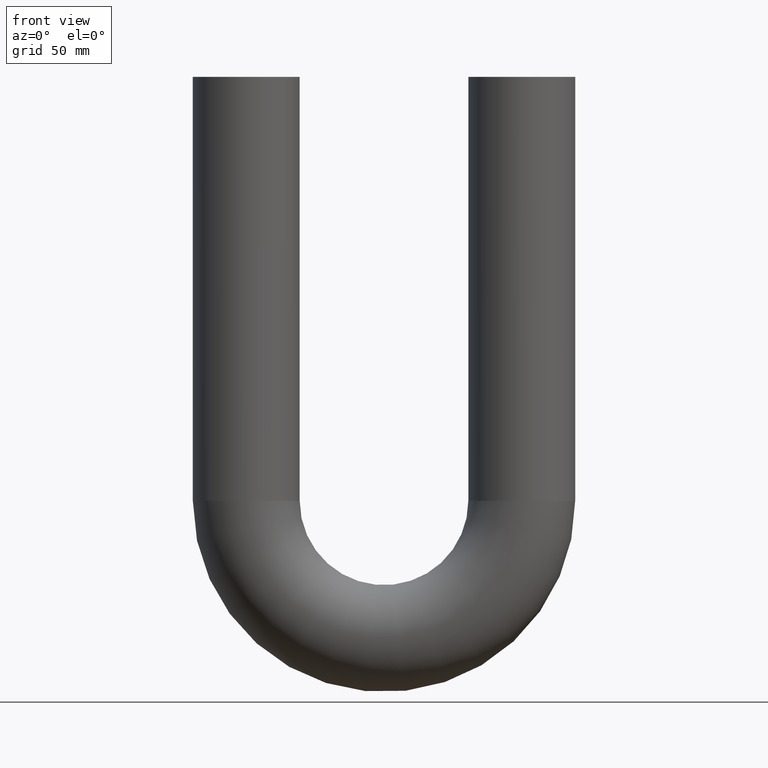
[diagram: clean part render]
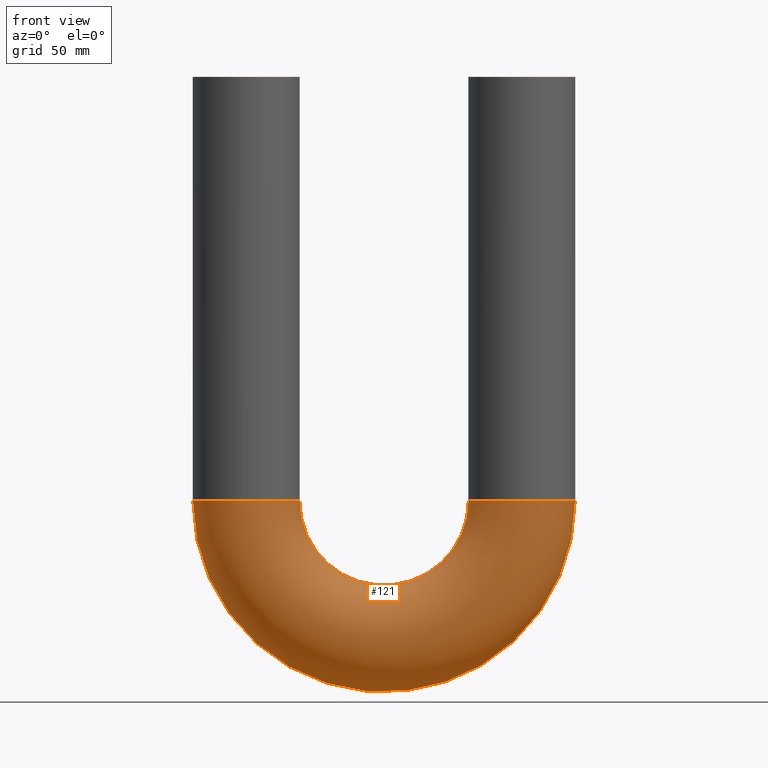
[diagram: same view with one face highlighted and labeled with its STEP entity id]
A machine part, front view. The second image highlights one B-rep face of the part: STEP entity #121.
In plain terms, the highlighted toroidal blend (fillet) surface has major radius 65 mm and minor (blend) radius 25.4 mm.
Its self-contained STEP definition (entity closure, byte-faithful):
#121=ADVANCED_FACE('',(#193,#195),#197,.T.);
#193=FACE_OUTER_BOUND('',#194,.T.);
#194=EDGE_LOOP('',(#216));
#195=FACE_OUTER_BOUND('',#196,.T.);
#196=EDGE_LOOP('',(#217));
#197=TOROIDAL_SURFACE('',#198,65.,25.4);
#198=AXIS2_PLACEMENT_3D('',#199,#200,#201);
#199=CARTESIAN_POINT('',(0.,0.,0.));
#200=DIRECTION('',(0.,-1.,-0.));
#201=DIRECTION('',(-1.,0.,0.));
#216=ORIENTED_EDGE('',*,*,#224,.T.);
#217=ORIENTED_EDGE('',*,*,#225,.F.);
#224=EDGE_CURVE('',#238,#238,#239,.T.);
#225=EDGE_CURVE('',#240,#240,#241,.T.);
#238=VERTEX_POINT('',#272);
#239=CIRCLE('',#273,25.4);
#240=VERTEX_POINT('',#277);
#241=CIRCLE('',#278,25.4);
#272=CARTESIAN_POINT('',(65.,25.4,-7.9602041944578E-015));
#273=AXIS2_PLACEMENT_3D('',#274,#275,#276);
#274=CARTESIAN_POINT('',(65.,0.,-7.9602041944578E-015));
#275=DIRECTION('',(-1.22464679914735E-016,-0.,-1.));
#276=DIRECTION('',(2.44929359829471E-016,1.,-2.99951956532371E-032));
#277=CARTESIAN_POINT('',(-65.,25.4,0.));
#278=AXIS2_PLACEMENT_3D('',#279,#280,#281);
#279=CARTESIAN_POINT('',(-65.,0.,0.));
#280=DIRECTION('',(-2.1316282072803E-016,0.,1.));
#281=DIRECTION('',(0.,1.,0.));